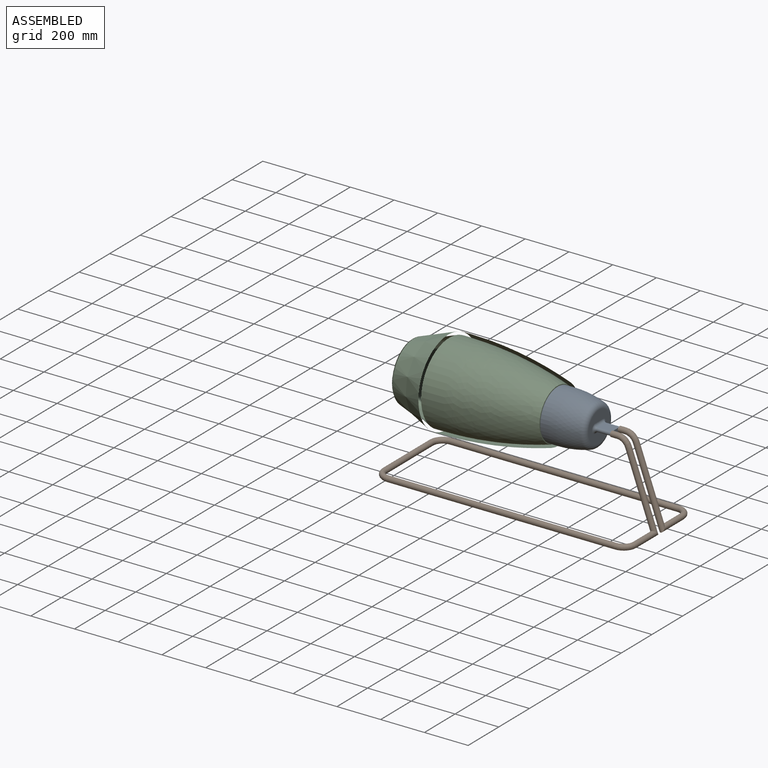
[diagram: assembled view]
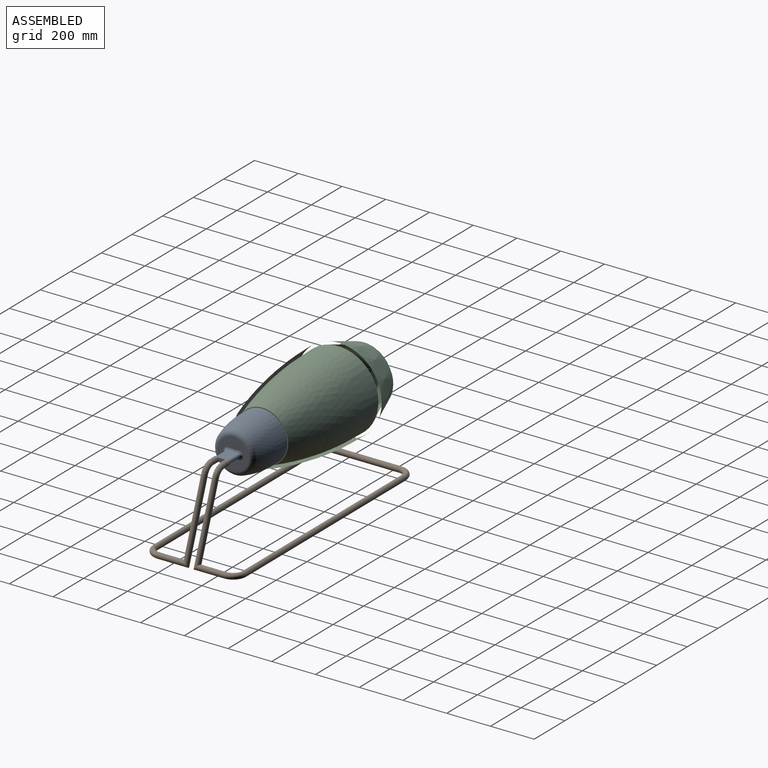
[diagram: assembled view, second angle]
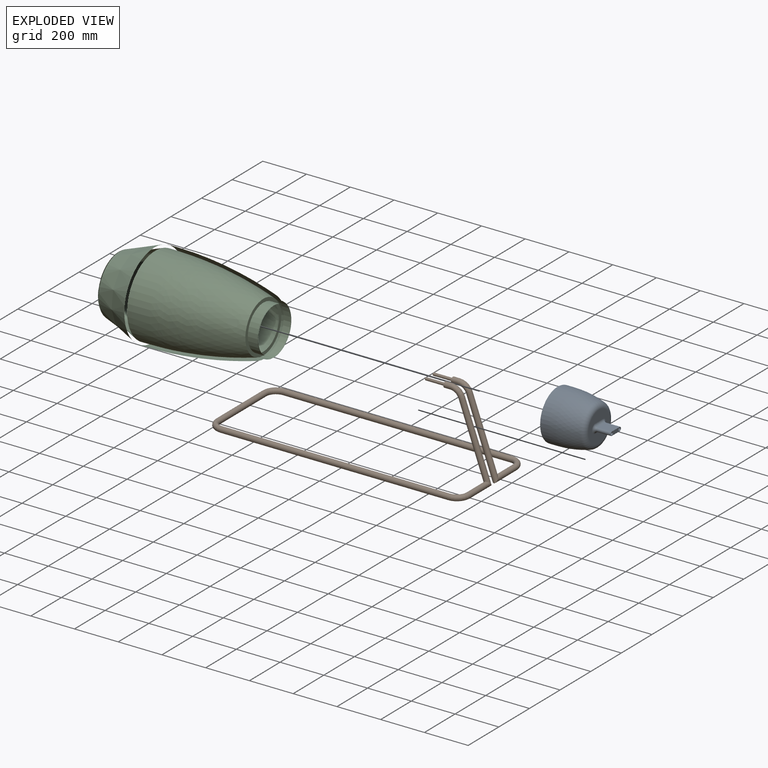
[diagram: exploded view]
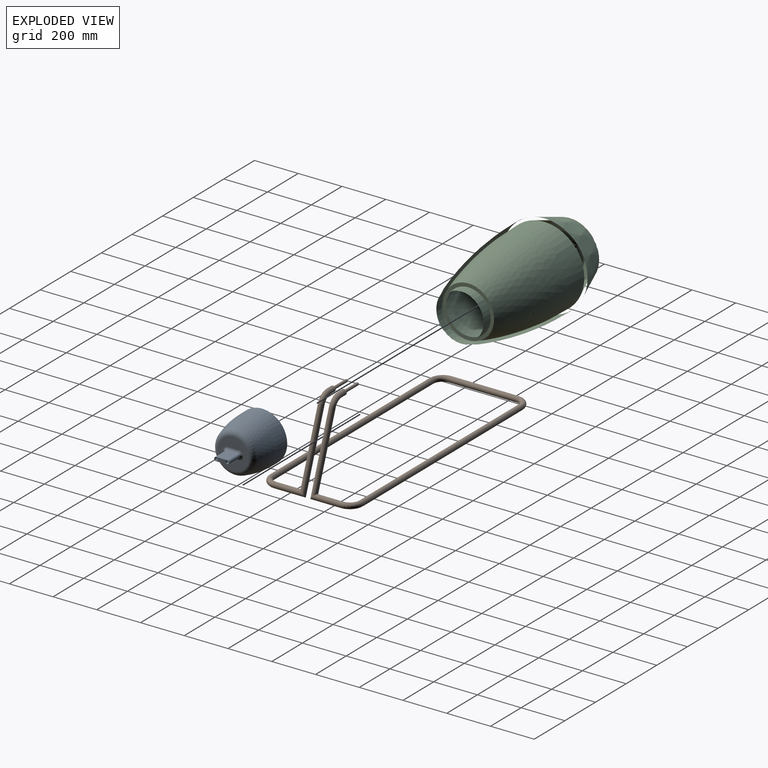
[diagram: exploded view, second angle]
ASSEMBLY  parts=3 mates=2
PART A: 26 faces, bbox 247.4x247.4x266.7 mm
  f0: plane 223.52x223.52mm, normal (0,0,-1), area 5168.4mm2, adj f9,f10
  f1: plane 140.74x140.74mm, normal (0,0,1), area 11899.5mm2, adj f2,f16,f17,f18,f19
  f2: torus R=70.37mm, axis (0,0,-1), area 17282.5mm2, adj f1,f3
  f3: revolved ~228.6x228.6mm, area 92180.3mm2, adj f2,f4
  f4: cylinder r=114.3mm len=228.6mm, axis (0,0,-1), area 25538.1mm2, adj f3,f10
  f5: plane 140.74x140.74mm, normal (0,0,-1), area 15192.6mm2, adj f6,f24,f25
  f6: torus R=70.37mm, axis (0,0,-1), area 7917.4mm2, adj f5,f7
  f7: revolved ~203.2x203.2mm, area 79265.3mm2, adj f6,f8
  f8: cylinder r=101.6mm len=203.2mm, axis (0,0,-1), area 22700.5mm2, adj f7,f9
  f9: torus R=104.14mm, axis (0,0,-1), area 2570.1mm2, adj f0,f8
  f10: torus R=111.76mm, axis (0,0,-1), area 2842.2mm2, adj f0,f4
  f11: cylinder r=8.89mm len=63.5mm, axis (0,0,-1), area 1773.5mm2, adj f12,f14,f15,f18
  f12: plane 63.5x50.8mm, normal (0,1,0), area 3225.8mm2, adj f11,f13,f15,f19
  f13: cylinder r=8.89mm len=63.5mm, axis (0,0,-1), area 1773.5mm2, adj f12,f14,f15,f17
  f14: plane 63.5x50.8mm, normal (0,-1,0), area 3225.8mm2, adj f11,f13,f15,f16
  f15: plane 68.58x17.78mm, normal (0,0,1), area 786.7mm2, adj f11,f12,f13,f14,f22,f23
  f16: cylinder r=12.7mm len=50.8mm, axis (-1,0,0), area 1013.4mm2, adj f1,f14,f17,f18
  f17: torus R=21.59mm, axis (0,0,-1), area 846.4mm2, adj f1,f13,f16,f19
  f18: torus R=21.59mm, axis (0,0,-1), area 846.4mm2, adj f1,f11,f16,f19
  f19: cylinder r=12.7mm len=50.8mm, axis (1,0,0), area 1013.4mm2, adj f1,f12,f17,f18
  f20: cylinder r=6.35mm len=86.36mm, axis (0,0,1), area 3445.6mm2, adj f23,f25
  f21: cylinder r=6.35mm len=86.36mm, axis (0,0,1), area 3445.6mm2, adj f22,f24
  f22: torus R=7.62mm, axis (0,0,1), area 85.4mm2, adj f15,f21
  f23: torus R=7.62mm, axis (0,0,1), area 85.4mm2, adj f15,f20
  f24: torus R=7.62mm, axis (0,0,-1), area 85.4mm2, adj f5,f21
  f25: torus R=7.62mm, axis (0,0,-1), area 85.4mm2, adj f5,f20
PART B: 25 faces, bbox 1179.6x443x392.6 mm
  f0: plane 25.4x25.4mm, normal (-1,0,0), area 324.3mm2, adj f3,f11
  f1: cylinder r=12.7mm len=345.34mm, axis (-0.34,0,0.94), area 27573.8mm2, adj f2,f8
  f2: torus R=51.14mm, axis (0,-1,0), area 4985.2mm2, adj f1,f3
  f3: cylinder r=12.7mm len=27.93mm, axis (-1,0,0), area 2228.7mm2, adj f0,f2
  f4: cylinder r=12.7mm len=304.8mm, axis (0,-1,0), area 24322mm2, adj f5,f17
  f5: torus R=51.16mm, axis (0,0,1), area 6412.3mm2, adj f4,f6
  f6: cylinder r=12.7mm len=1041.4mm, axis (1,0,0), area 83100mm2, adj f5,f7
  f7: torus R=51.16mm, axis (0,0,1), area 6412.3mm2, adj f6,f8
  f8: cylinder r=12.7mm len=139.83mm, axis (0,1,0), area 10143.9mm2, adj f1,f7
  f9: plane 10.16x10.16mm, normal (-1,0,0), area 81.1mm2, adj f12
  f10: cylinder r=6.35mm len=86.36mm, axis (-1,0,0), area 3445.6mm2, adj f11,f12
  f11: torus R=7.62mm, axis (-1,0,0), area 85.4mm2, adj f0,f10
  f12: torus R=5.08mm, axis (-1,0,0), area 73.8mm2, adj f9,f10
  f13: plane 25.4x25.4mm, normal (-1,0,0), area 324.3mm2, adj f16,f23
  f14: cylinder r=12.7mm len=345.34mm, axis (-0.34,0,0.94), area 27573.8mm2, adj f15,f20
  f15: torus R=51.14mm, axis (0,1,0), area 4985.2mm2, adj f14,f16
  f16: cylinder r=12.7mm len=27.93mm, axis (-1,0,0), area 2228.7mm2, adj f13,f15
  f17: torus R=51.16mm, axis (0,0,1), area 6412.3mm2, adj f4,f18
  f18: cylinder r=12.7mm len=1041.4mm, axis (1,0,0), area 83100mm2, adj f17,f19
  f19: torus R=51.16mm, axis (0,0,1), area 6412.3mm2, adj f18,f20
  f20: cylinder r=12.7mm len=139.83mm, axis (0,-1,0), area 10143.9mm2, adj f14,f19
  f21: plane 10.16x10.16mm, normal (-1,0,0), area 81.1mm2, adj f24
  f22: cylinder r=6.35mm len=86.36mm, axis (-1,0,0), area 3445.6mm2, adj f23,f24
  f23: torus R=7.62mm, axis (-1,0,0), area 85.4mm2, adj f13,f22
  f24: torus R=5.08mm, axis (-1,0,0), area 73.8mm2, adj f21,f22
PART C: 63 faces, bbox 765.8x424.2x424.2 mm
  f0: cone r=136.56mm half-angle=20.3deg, axis (1,0,0), area 176208.7mm2, adj f1,f50
  f1: torus R=124.65mm, axis (1,0,0), area 9959.7mm2, adj f0,f2
  f2: cone r=0mm half-angle=74.1deg, axis (1,0,0), area 50769mm2, adj f1,f3,f41,f42,f43,f44,f45,f46
  f3: bspline ~43.38x15.01mm, area 52.6mm2, adj f2,f4,f40,f41
  f4: plane 24.72x10.23mm, normal (0,-0.95,0.31), area 181.1mm2, adj f3,f5,f38,f39
  f5: plane 21.03x15.28mm, normal (0,-0.59,-0.81), area 181.1mm2, adj f4,f6,f36,f41
  f6: cylinder r=11.68mm len=34.76mm, axis (0,0.81,-0.59), area 304.2mm2, adj f5,f7,f34,f35,f39
  f7: plane 0.21x0.2mm, normal (-1,0,0), area 0mm2, adj f6,f8,f26,f27,f28,f30,f31,f32
  f8: cylinder r=11.68mm len=36.4mm, axis (0,-0.31,0.95), area 304.2mm2, adj f7,f9,f25,f33
  f9: plane 24.72x10.23mm, normal (0,0.95,0.31), area 181.1mm2, adj f8,f10,f21,f44
  f10: plane 25.99x10.23mm, normal (0,0,1), area 181.1mm2, adj f9,f11,f33,f45
  f11: cylinder r=0.51mm len=10.23mm, axis (1,0,0), area 13.1mm2, adj f10,f12,f19,f20
  f12: plane 21.03x15.28mm, normal (0,0.59,-0.81), area 181.1mm2, adj f11,f13,f32,f46
  f13: plane 24.72x10.23mm, normal (0,0.95,0.31), area 181.1mm2, adj f12,f14,f31,f47
  f14: cylinder r=0.51mm len=10.23mm, axis (1,0,0), area 13.1mm2, adj f13,f15,f17,f18
  f15: plane 21.03x15.28mm, normal (0,-0.59,-0.81), area 181.1mm2, adj f14,f16,f30,f48
  f16: plane 21.03x15.28mm, normal (0,0.59,-0.81), area 181.1mm2, adj f15,f28,f38,f49
  f17: bspline ~4.53x3.48mm, area 2.1mm2, adj f14,f47,f48
  f18: bspline ~30.59x22.22mm, area 14.1mm2, adj f14,f30,f31
  f19: bspline ~5.14x2.95mm, area 2.1mm2, adj f11,f45,f46
  f20: bspline ~35.96x13.76mm, area 22mm2, adj f11,f32,f33
  f21: cylinder r=0.51mm len=10.23mm, axis (1,0,0), area 13.1mm2, adj f9,f22,f23,f25
  f22: bspline ~5.25x2.95mm, area 2.1mm2, adj f21,f43,f44
  f23: plane 24.72x10.23mm, normal (0,-0.95,0.31), area 181.1mm2, adj f21,f24,f26,f43
  f24: plane 25.99x10.23mm, normal (0,0,1), area 181.1mm2, adj f23,f27,f36,f42
  f25: bspline ~37.81x12.22mm, area 14.4mm2, adj f8,f21,f26
  f26: cylinder r=11.68mm len=36.4mm, axis (0,-0.31,-0.95), area 304.2mm2, adj f7,f23,f25,f27
  f27: cylinder r=11.68mm len=34.48mm, axis (0,-1,0), area 304.2mm2, adj f7,f24,f26,f34,f35
  f28: cylinder r=11.68mm len=34.76mm, axis (0,0.81,0.59), area 304.2mm2, adj f7,f16,f29,f30
  f29: bspline ~30.59x22.22mm, area 14.1mm2, adj f28,f38,f39
  f30: cylinder r=11.68mm len=34.76mm, axis (0,0.81,-0.59), area 304.2mm2, adj f7,f15,f18,f28
  f31: cylinder r=11.68mm len=36.4mm, axis (0,-0.31,0.95), area 304.2mm2, adj f7,f13,f18,f32
  f32: cylinder r=11.68mm len=34.76mm, axis (0,0.81,0.59), area 304.2mm2, adj f7,f12,f20,f31
  f33: cylinder r=11.68mm len=34.48mm, axis (0,-1,0), area 304.2mm2, adj f7,f8,f10,f20
  f34: bspline ~17.79x10.61mm, area 9mm2, adj f6,f27,f36
  f35: bspline ~22.89x7.71mm, area 1.5mm2, adj f6,f27
  f36: cylinder r=0.51mm len=10.23mm, axis (1,0,0), area 13.1mm2, adj f5,f24,f34,f37
  f37: bspline ~5.14x2.95mm, area 2.1mm2, adj f36,f41,f42
  f38: cylinder r=0.51mm len=10.23mm, axis (-1,0,0), area 13.1mm2, adj f4,f16,f29,f40
  f39: cylinder r=11.68mm len=36.4mm, axis (0,-0.31,-0.95), area 304.2mm2, adj f4,f6,f7,f29
  f40: bspline ~4.53x3.48mm, area 2.1mm2, adj f3,f38,f49
  f41: bspline ~36.36x26.89mm, area 52.6mm2, adj f2,f3,f5,f37
  f42: bspline ~44.42x11.83mm, area 52.6mm2, adj f2,f24,f37,f43
  f43: bspline ~42.29x14.63mm, area 52.6mm2, adj f2,f22,f23,f42
  f44: bspline ~42.29x14.63mm, area 52.6mm2, adj f2,f9,f22,f45
  f45: bspline ~44.44x11.84mm, area 52.6mm2, adj f2,f10,f19,f44
  f46: bspline ~37.05x27.4mm, area 52.6mm2, adj f2,f12,f19,f47
  f47: bspline ~43.38x15.01mm, area 52.6mm2, adj f2,f13,f17,f46
  f48: bspline ~37.21x27.37mm, area 52.6mm2, adj f2,f15,f17,f49
  f49: bspline ~36.51x26.87mm, area 52.6mm2, adj f2,f16,f40,f48
  f50: torus R=183.24mm, axis (1,0,0), area 5525.6mm2, adj f0,f51
  f51: cylinder r=195.94mm len=391.88mm, axis (1,0,0), area 28475.1mm2, adj f50,f52
  f52: revolved ~475.23x391.88mm, area 525632.6mm2, adj f51,f53
  f53: torus R=117.44mm, axis (1,0,0), area 12858.6mm2, adj f52,f54
  f54: plane 234.87x234.87mm, normal (1,0,0), area 2283.7mm2, adj f53,f55
  f55: cylinder r=114.3mm len=228.6mm, axis (1,0,0), area 22801.8mm2, adj f54,f56
  f56: torus R=107.95mm, axis (1,0,0), area 13530.9mm2, adj f55,f57
  f57: cylinder r=101.6mm len=203.2mm, axis (1,0,0), area 28375.6mm2, adj f56,f58
  f58: plane 234.87x234.87mm, normal (-1,0,0), area 10897.7mm2, adj f57,f59
  f59: revolved ~471.76x366.48mm, area 484144.1mm2, adj f58,f60
  f60: cylinder r=183.24mm len=366.48mm, axis (1,0,0), area 26629.5mm2, adj f59,f61
  f61: cone r=124.65mm half-angle=20.3deg, axis (1,0,0), area 163552.1mm2, adj f60,f62
  f62: cone r=0mm half-angle=74.1deg, axis (1,0,0), area 50762.2mm2, adj f61
PLACE A rot(axis=(-0.58,0.58,-0.58),120deg) t=(-527.93,308.11,642.1)mm
PLACE B t=(-55.4,282.83,283.74)mm
PLACE C t=(-477.13,308.11,642.1)mm
MATE fastened C.f0 <-> A.f2  axis (-1,0,0) through (-527.93,308.11,642.1)mm
MATE fastened B.f24 <-> A.f13  axis (-1,0,0) through (-261.23,333.51,642.1)mm
